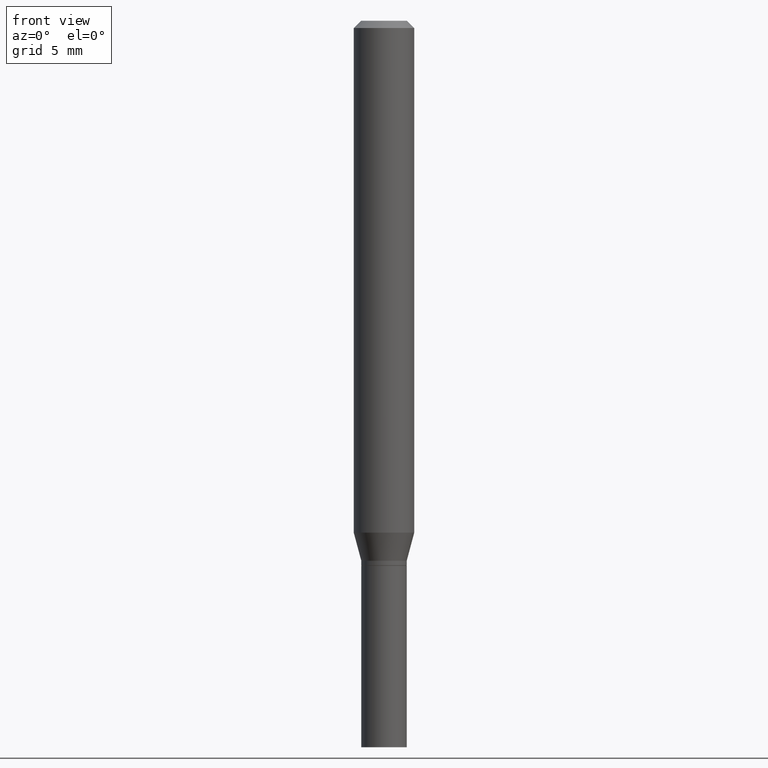
[diagram: clean part render]
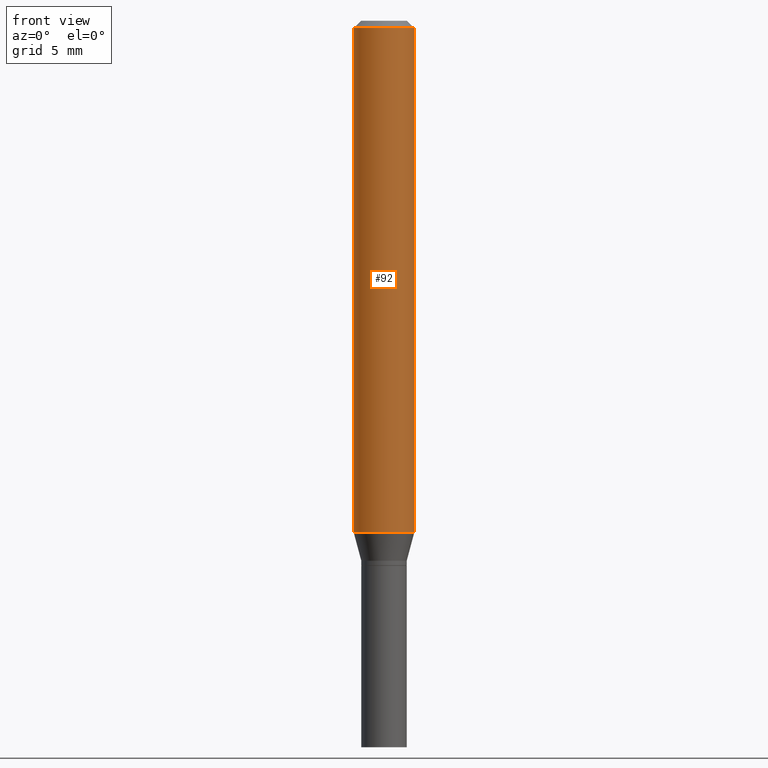
[diagram: same view with one face highlighted and labeled with its STEP entity id]
A machine part, front view. The second image highlights one B-rep face of the part: STEP entity #92.
In plain terms, the highlighted cylindrical surface (edge-blend (fillet) strip) has radius 1.5875 mm, axis along (-0, 0, 1).
Its self-contained STEP definition (entity closure, byte-faithful):
#15 = EDGE_CURVE ( 'NONE', #219, #146, #91, .T. ) ;
#41 = CARTESIAN_POINT ( 'NONE',  ( 0.06250000000000000000, -4.126162842461739318E-15, -1.056780007401926458 ) ) ;
#54 = EDGE_CURVE ( 'NONE', #454, #272, #222, .T. ) ;
#60 = CIRCLE ( 'NONE', #388, 0.06250000000000000000 ) ;
#68 = AXIS2_PLACEMENT_3D ( 'NONE', #321, #105, #251 ) ;
#72 = CIRCLE ( 'NONE', #68, 0.06250000000000000000 ) ;
#91 = LINE ( 'NONE', #398, #356 ) ;
#92 = ADVANCED_FACE ( 'NONE', ( #112 ), #226, .T. ) ;
#105 = DIRECTION ( 'NONE',  ( -2.445468806185136597E-29, 3.491481338843145583E-15, 1.000000000000000000 ) ) ;
#106 = ORIENTED_EDGE ( 'NONE', *, *, #119, .T. ) ;
#109 = ORIENTED_EDGE ( 'NONE', *, *, #15, .T. ) ;
#112 = FACE_OUTER_BOUND ( 'NONE', #289, .T. ) ;
#113 = DIRECTION ( 'NONE',  ( -2.445468806185136597E-29, 3.491481338843145583E-15, 1.000000000000000000 ) ) ;
#119 = EDGE_CURVE ( 'NONE', #454, #219, #72, .T. ) ;
#146 = VERTEX_POINT ( 'NONE', #165 ) ;
#165 = CARTESIAN_POINT ( 'NONE',  ( 0.06250000000000000000, -4.888073874380388472E-16, -0.01499999999999999944 ) ) ;
#188 = CARTESIAN_POINT ( 'NONE',  ( -0.06250000000000000000, 4.440892098500626162E-16, -3.074334431409316114E-30 ) ) ;
#217 = DIRECTION ( 'NONE',  ( -2.445468806185136597E-29, 3.491481338843145583E-15, 1.000000000000000000 ) ) ;
#218 = AXIS2_PLACEMENT_3D ( 'NONE', #428, #217, #297 ) ;
#219 = VERTEX_POINT ( 'NONE', #41 ) ;
#222 = LINE ( 'NONE', #188, #225 ) ;
#225 = VECTOR ( 'NONE', #466, 39.37007874015748143 ) ;
#226 = CYLINDRICAL_SURFACE ( 'NONE', #218, 0.06250000000000000000 ) ;
#251 = DIRECTION ( 'NONE',  ( 1.000000000000000000, -6.982962677686270655E-15, 0.000000000000000000 ) ) ;
#271 = CARTESIAN_POINT ( 'NONE',  ( 3.668203209277705088E-31, -5.237222008264718399E-17, -0.01499999999999999944 ) ) ;
#272 = VERTEX_POINT ( 'NONE', #364 ) ;
#276 = CARTESIAN_POINT ( 'NONE',  ( -0.06250000000000000000, -3.245638465256284638E-15, -1.056780007401926458 ) ) ;
#289 = EDGE_LOOP ( 'NONE', ( #315, #106, #109, #327 ) ) ;
#297 = DIRECTION ( 'NONE',  ( 1.000000000000000000, -6.982962677686266711E-15, 4.876176775795935793E-29 ) ) ;
#315 = ORIENTED_EDGE ( 'NONE', *, *, #54, .F. ) ;
#321 = CARTESIAN_POINT ( 'NONE',  ( 2.584322543101508946E-29, -3.689727675106347649E-15, -1.056780007401926458 ) ) ;
#327 = ORIENTED_EDGE ( 'NONE', *, *, #349, .F. ) ;
#339 = DIRECTION ( 'NONE',  ( 1.000000000000000000, -6.982962677686266711E-15, 0.000000000000000000 ) ) ;
#349 = EDGE_CURVE ( 'NONE', #272, #146, #60, .T. ) ;
#356 = VECTOR ( 'NONE', #460, 39.37007874015748143 ) ;
#364 = CARTESIAN_POINT ( 'NONE',  ( -0.06250000000000000000, -1.426960737744434748E-15, -0.01499999999999999944 ) ) ;
#388 = AXIS2_PLACEMENT_3D ( 'NONE', #271, #113, #339 ) ;
#398 = CARTESIAN_POINT ( 'NONE',  ( 0.06250000000000000000, -4.364351673553916694E-16, 3.047610484872459871E-30 ) ) ;
#428 = CARTESIAN_POINT ( 'NONE',  ( 0.000000000000000000, 0.000000000000000000, 0.000000000000000000 ) ) ;
#454 = VERTEX_POINT ( 'NONE', #276 ) ;
#460 = DIRECTION ( 'NONE',  ( -2.445468806185136877E-29, 3.491481338843145188E-15, 1.000000000000000000 ) ) ;
#466 = DIRECTION ( 'NONE',  ( -2.445468806185136877E-29, 3.491481338843145188E-15, 1.000000000000000000 ) ) ;